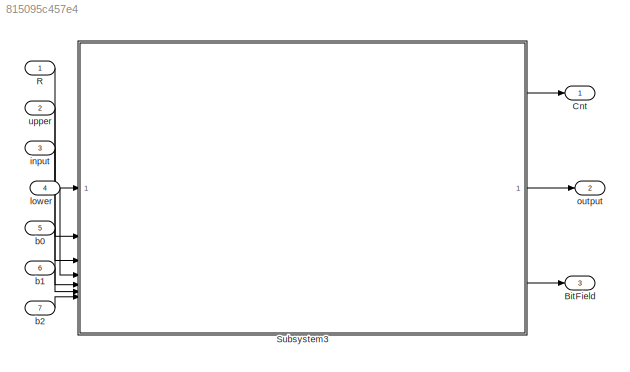
MODEL slx_815095c457e4
KIND model
CONFIG AbsTol = auto
CONFIG EnableMultiTasking = off
CONFIG FixedStep = auto
CONFIG MaxStep = auto
CONFIG MinStep = auto
CONFIG RelTol = 1e-3
CONFIG SampleTimeConstraint = Unconstrained
CONFIG SolverName = VariableStepAuto
CONFIG StartTime = 0.0
CONFIG StopTime = 10.0
BLOCK [Outport] BitField
  Port = 3
BLOCK [Outport] Cnt
BLOCK [Inport] R
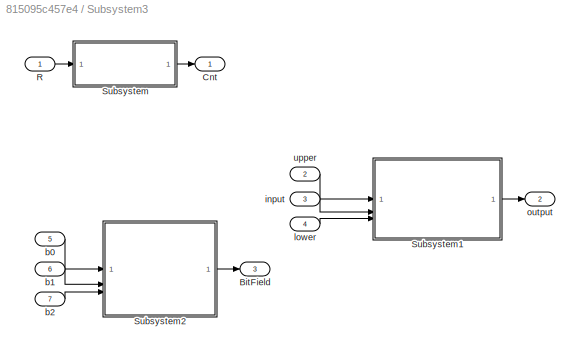
BLOCK [SubSystem] Subsystem3
BLOCK [Outport] Subsystem3/BitField
  Port = 3
BLOCK [Outport] Subsystem3/Cnt
BLOCK [Inport] Subsystem3/R
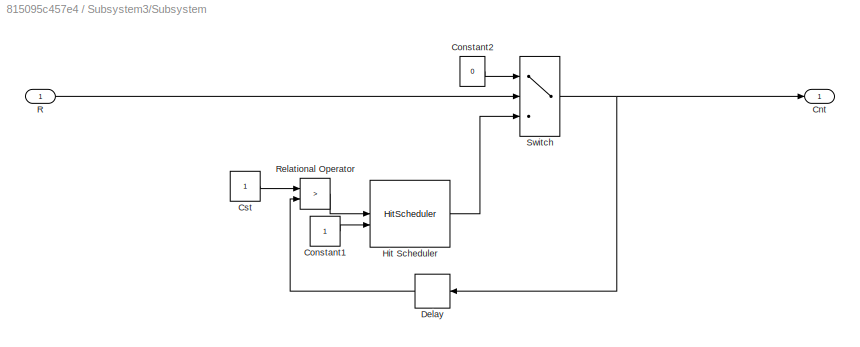
BLOCK [SubSystem] Subsystem3/Subsystem
BLOCK [Outport] Subsystem3/Subsystem/Cnt
BLOCK [Constant] Subsystem3/Subsystem/Constant1
BLOCK [Constant] Subsystem3/Subsystem/Constant2
  Value = 0
BLOCK [Constant] Subsystem3/Subsystem/Cst
BLOCK [Delay] Subsystem3/Subsystem/Delay
  DelayLength = 1
  InitialCondition = 0
  InputPortMap = u0
  NameLocation = top
BLOCK [HitScheduler] Subsystem3/Subsystem/Hit Scheduler
BLOCK [Inport] Subsystem3/Subsystem/R
BLOCK [RelationalOperator] Subsystem3/Subsystem/Relational Operator
  InputSameDT = off
  Operator = >
  OutDataTypeStr = boolean
  RndMeth = Simplest
BLOCK [Switch] Subsystem3/Subsystem/Switch
  Criteria = u2 ~= 0
  InputSameDT = off
  SaturateOnIntegerOverflow = off
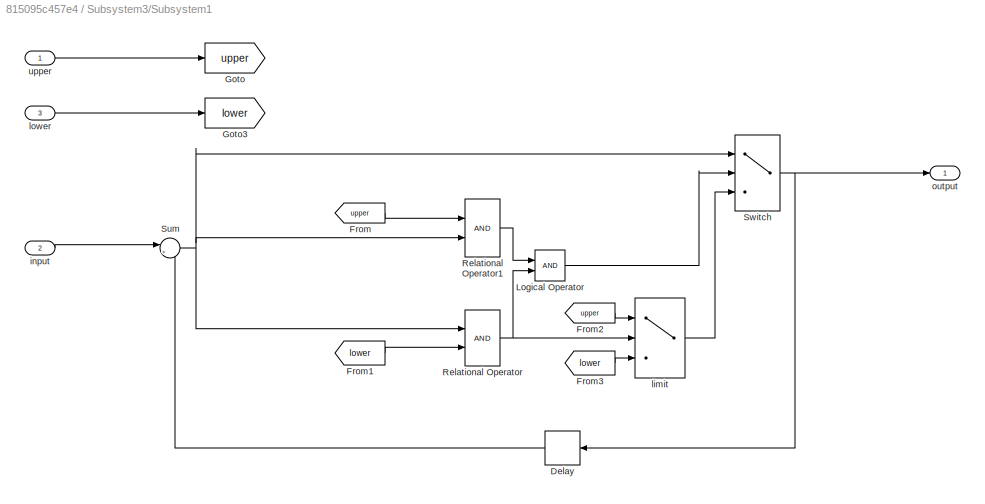
BLOCK [SubSystem] Subsystem3/Subsystem1
BLOCK [Delay] Subsystem3/Subsystem1/Delay
  DelayLength = 1
  InitialCondition = 0
  InputPortMap = u0
  NameLocation = top
BLOCK [From] Subsystem3/Subsystem1/From
  GotoTag = upper
BLOCK [From] Subsystem3/Subsystem1/From1
  GotoTag = lower
BLOCK [From] Subsystem3/Subsystem1/From2
  GotoTag = upper
BLOCK [From] Subsystem3/Subsystem1/From3
  GotoTag = lower
BLOCK [Goto] Subsystem3/Subsystem1/Goto
  GotoTag = upper
BLOCK [Goto] Subsystem3/Subsystem1/Goto3
  GotoTag = lower
BLOCK [Logic] Subsystem3/Subsystem1/Logical Operator
  AllPortsSameDT = off
  OutDataTypeStr = boolean
BLOCK [RelationalOperator] Subsystem3/Subsystem1/Relational Operator
  InputSameDT = off
  OutDataTypeStr = boolean
  RndMeth = Simplest
BLOCK [RelationalOperator] Subsystem3/Subsystem1/Relational Operator1
  InputSameDT = off
  OutDataTypeStr = boolean
  RndMeth = Simplest
BLOCK [Sum] Subsystem3/Subsystem1/Sum
  Inputs = |++
BLOCK [Switch] Subsystem3/Subsystem1/Switch
  Criteria = u2 ~= 0
  InputSameDT = off
  SaturateOnIntegerOverflow = off
  ZeroCross = off
BLOCK [Inport] Subsystem3/Subsystem1/input
  Port = 2
BLOCK [Switch] Subsystem3/Subsystem1/limit
  Criteria = u2 ~= 0
  InputSameDT = off
  SaturateOnIntegerOverflow = off
  ZeroCross = off
BLOCK [Inport] Subsystem3/Subsystem1/lower
  Port = 3
BLOCK [Outport] Subsystem3/Subsystem1/output
BLOCK [Inport] Subsystem3/Subsystem1/upper
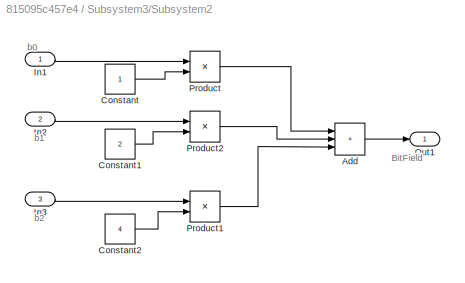
BLOCK [SubSystem] Subsystem3/Subsystem2
BLOCK [Sum] Subsystem3/Subsystem2/Add
  IconShape = rectangular
  Inputs = +++
BLOCK [Constant] Subsystem3/Subsystem2/Constant
BLOCK [Constant] Subsystem3/Subsystem2/Constant1
  Value = 2
BLOCK [Constant] Subsystem3/Subsystem2/Constant2
  Value = 4
BLOCK [Inport] Subsystem3/Subsystem2/In1
BLOCK [Inport] Subsystem3/Subsystem2/In2
  Port = 2
BLOCK [Inport] Subsystem3/Subsystem2/In3
  Port = 3
BLOCK [Outport] Subsystem3/Subsystem2/Out1
BLOCK [Product] Subsystem3/Subsystem2/Product
BLOCK [Product] Subsystem3/Subsystem2/Product1
BLOCK [Product] Subsystem3/Subsystem2/Product2
BLOCK [Inport] Subsystem3/b0
  Port = 5
BLOCK [Inport] Subsystem3/b1
  Port = 6
BLOCK [Inport] Subsystem3/b2
  Port = 7
BLOCK [Inport] Subsystem3/input
  Port = 3
BLOCK [Inport] Subsystem3/lower
  Port = 4
BLOCK [Outport] Subsystem3/output
  Port = 2
BLOCK [Inport] Subsystem3/upper
  Port = 2
BLOCK [Inport] b0
  Port = 5
BLOCK [Inport] b1
  Port = 6
BLOCK [Inport] b2
  Port = 7
BLOCK [Inport] input
  Port = 3
BLOCK [Inport] lower
  Port = 4
BLOCK [Outport] output
  Port = 2
BLOCK [Inport] upper
  Port = 2
ANNOTATION Subsystem3/Subsystem2: BitField
ANNOTATION Subsystem3/Subsystem2: b0
ANNOTATION Subsystem3/Subsystem2: b1
ANNOTATION Subsystem3/Subsystem2: b2
LINE R:1 -> Subsystem3:1
LINE Subsystem3/R:1 -> Subsystem3/Subsystem:1
LINE Subsystem3/Subsystem/Constant1:1 -> Subsystem3/Subsystem/Hit Scheduler:2
LINE Subsystem3/Subsystem/Constant2:1 -> Subsystem3/Subsystem/Switch:1
LINE Subsystem3/Subsystem/Cst:1 -> Subsystem3/Subsystem/Relational Operator:1
LINE Subsystem3/Subsystem/Delay:1 -> Subsystem3/Subsystem/Relational Operator:2
LINE Subsystem3/Subsystem/Hit Scheduler:1 -> Subsystem3/Subsystem/Switch:3
LINE Subsystem3/Subsystem/R:1 -> Subsystem3/Subsystem/Switch:2
LINE Subsystem3/Subsystem/Relational Operator:1 -> Subsystem3/Subsystem/Hit Scheduler:1
NET Subsystem3/Subsystem/Switch:1 -> Subsystem3/Subsystem/Cnt:1, Subsystem3/Subsystem/Delay:1
LINE Subsystem3/Subsystem1/Delay:1 -> Subsystem3/Subsystem1/Sum:2
LINE Subsystem3/Subsystem1/From1:1 -> Subsystem3/Subsystem1/Relational Operator:2
LINE Subsystem3/Subsystem1/From2:1 -> Subsystem3/Subsystem1/limit:1
LINE Subsystem3/Subsystem1/From3:1 -> Subsystem3/Subsystem1/limit:3
LINE Subsystem3/Subsystem1/From:1 -> Subsystem3/Subsystem1/Relational Operator1:1
LINE Subsystem3/Subsystem1/Logical Operator:1 -> Subsystem3/Subsystem1/Switch:2
LINE Subsystem3/Subsystem1/Relational Operator1:1 -> Subsystem3/Subsystem1/Logical Operator:1
NET Subsystem3/Subsystem1/Relational Operator:1 -> Subsystem3/Subsystem1/Logical Operator:2, Subsystem3/Subsystem1/limit:2
NET Subsystem3/Subsystem1/Sum:1 -> Subsystem3/Subsystem1/Relational Operator1:2, Subsystem3/Subsystem1/Relational Operator:1, Subsystem3/Subsystem1/Switch:1
NET Subsystem3/Subsystem1/Switch:1 -> Subsystem3/Subsystem1/Delay:1, Subsystem3/Subsystem1/output:1
LINE Subsystem3/Subsystem1/input:1 -> Subsystem3/Subsystem1/Sum:1
LINE Subsystem3/Subsystem1/limit:1 -> Subsystem3/Subsystem1/Switch:3
LINE Subsystem3/Subsystem1/lower:1 -> Subsystem3/Subsystem1/Goto3:1
LINE Subsystem3/Subsystem1/upper:1 -> Subsystem3/Subsystem1/Goto:1
LINE Subsystem3/Subsystem1:1 -> Subsystem3/output:1
LINE Subsystem3/Subsystem2/Add:1 -> Subsystem3/Subsystem2/Out1:1
LINE Subsystem3/Subsystem2/Constant1:1 -> Subsystem3/Subsystem2/Product2:2
LINE Subsystem3/Subsystem2/Constant2:1 -> Subsystem3/Subsystem2/Product1:2
LINE Subsystem3/Subsystem2/Constant:1 -> Subsystem3/Subsystem2/Product:2
LINE Subsystem3/Subsystem2/In1:1 -> Subsystem3/Subsystem2/Product:1
LINE Subsystem3/Subsystem2/In2:1 -> Subsystem3/Subsystem2/Product2:1
LINE Subsystem3/Subsystem2/In3:1 -> Subsystem3/Subsystem2/Product1:1
LINE Subsystem3/Subsystem2/Product1:1 -> Subsystem3/Subsystem2/Add:3
LINE Subsystem3/Subsystem2/Product2:1 -> Subsystem3/Subsystem2/Add:2
LINE Subsystem3/Subsystem2/Product:1 -> Subsystem3/Subsystem2/Add:1
LINE Subsystem3/Subsystem2:1 -> Subsystem3/BitField:1
LINE Subsystem3/Subsystem:1 -> Subsystem3/Cnt:1
LINE Subsystem3/b0:1 -> Subsystem3/Subsystem2:1
LINE Subsystem3/b1:1 -> Subsystem3/Subsystem2:2
LINE Subsystem3/b2:1 -> Subsystem3/Subsystem2:3
LINE Subsystem3/input:1 -> Subsystem3/Subsystem1:2
LINE Subsystem3/lower:1 -> Subsystem3/Subsystem1:3
LINE Subsystem3/upper:1 -> Subsystem3/Subsystem1:1
LINE Subsystem3:1 -> Cnt:1
LINE Subsystem3:2 -> output:1
LINE Subsystem3:3 -> BitField:1
LINE b0:1 -> Subsystem3:5
LINE b1:1 -> Subsystem3:6
LINE b2:1 -> Subsystem3:7
LINE input:1 -> Subsystem3:3
LINE lower:1 -> Subsystem3:4
LINE upper:1 -> Subsystem3:2
note: NET lines group one-source signal fan-out (src -> all destinations, sorted); 1:1 wires keep LINE
